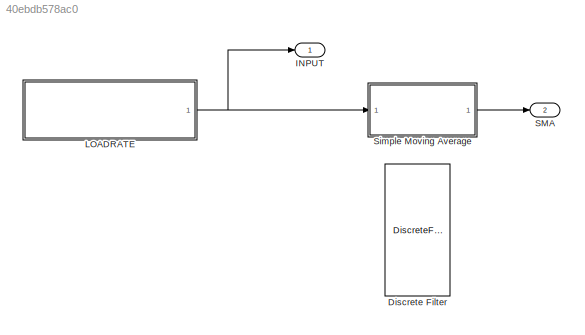
MODEL slx_40ebdb578ac0
KIND model
CONFIG AbsTol = auto
CONFIG EnableMultiTasking = off
CONFIG FixedStep = 1/360
CONFIG MaxStep = auto
CONFIG MinStep = auto
CONFIG RelTol = 1e-3
CONFIG SampleTimeConstraint = Unconstrained
CONFIG SolverName = FixedStepAuto
CONFIG StartTime = 0.0
CONFIG StopTime = 500
BLOCK [DiscreteFilter] Discrete Filter
  InputPortMap = u0
  Ports = [1, 1]
BLOCK [Outport] INPUT
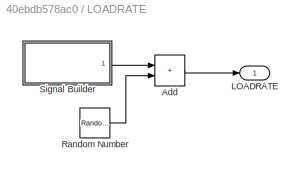
BLOCK [SubSystem] LOADRATE
  Ports = [0, 1]
  RequestExecContextInheritance = off
BLOCK [Sum] LOADRATE/Add
  IconShape = rectangular
  Ports = [2, 1]
BLOCK [Outport] LOADRATE/LOADRATE
BLOCK [RandomNumber] LOADRATE/Random Number
  Mean = 5
  SampleTime = 1/360
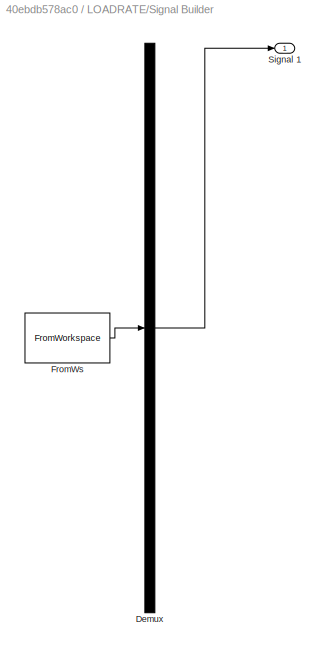
BLOCK [SubSystem] LOADRATE/Signal Builder
  ClipboardFcn = sigbuilder_block('clipboard');
  CloseFcn = sigbuilder_block('close');
  ContinueFcn = sigbuilder_block('continue');
  CopyFcn = sigbuilder_block('copy');
  DeleteFcn = sigbuilder_block('delete');
  LoadFcn = sigbuilder_block('load');
  MaskHideContents = on
  ModelCloseFcn = sigbuilder_block('modelClose');
  NameChangeFcn = sigbuilder_block('namechange');
  OpenFcn = sigbuilder_block('open',[6 36 1428 675.75 ]);
  PauseFcn = sigbuilder_block('pause');
  Ports = [0, 1]
  PreSaveFcn = sigbuilder_block('preSave');
  RequestExecContextInheritance = off
  StartFcn = sigbuilder_block('start');
  StopFcn = sigbuilder_block('stop');
  Tag = STV Subsys
BLOCK [Demux] LOADRATE/Signal Builder/Demux
  DisplayOption = none
  Outputs = 1
  Ports = [1, 1]
  Tag = STV Demux
BLOCK [FromWorkspace] LOADRATE/Signal Builder/FromWs
  Tag = STV FromWs
  VariableName = tuvar
BLOCK [Outport] LOADRATE/Signal Builder/Signal 1
  Tag = STV Outport
BLOCK [Outport] SMA
  Port = 2
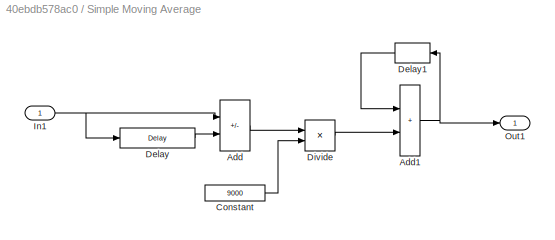
BLOCK [SubSystem] Simple Moving Average
  Ports = [1, 1]
  RequestExecContextInheritance = off
BLOCK [Sum] Simple Moving Average/Add
  IconShape = rectangular
  Inputs = +-
  Ports = [2, 1]
BLOCK [Sum] Simple Moving Average/Add1
  IconShape = rectangular
  Ports = [2, 1]
BLOCK [Constant] Simple Moving Average/Constant
  Value = 9000
BLOCK [Delay] Simple Moving Average/Delay
  DelayLength = 9000
  InitialCondition = 60
  InputPortMap = u0
  Ports = [1, 1]
BLOCK [Delay] Simple Moving Average/Delay1
  DelayLength = 1
  InitialCondition = 60
  InputPortMap = u0
  Ports = [1, 1]
BLOCK [Product] Simple Moving Average/Divide
  Inputs = */
  Ports = [2, 1]
BLOCK [Inport] Simple Moving Average/In1
BLOCK [Outport] Simple Moving Average/Out1
LINE LOADRATE/Add:1 -> LOADRATE/LOADRATE:1
LINE LOADRATE/Random Number:1 -> LOADRATE/Add:2
LINE LOADRATE/Signal Builder:1 -> LOADRATE/Add:1
NET LOADRATE:1 -> INPUT:1, Simple Moving Average:1
NET Simple Moving Average/Add1:1 -> Simple Moving Average/Delay1:1, Simple Moving Average/Out1:1
LINE Simple Moving Average/Add:1 -> Simple Moving Average/Divide:1
LINE Simple Moving Average/Constant:1 -> Simple Moving Average/Divide:2
LINE Simple Moving Average/Delay1:1 -> Simple Moving Average/Add1:1
LINE Simple Moving Average/Delay:1 -> Simple Moving Average/Add:2
LINE Simple Moving Average/Divide:1 -> Simple Moving Average/Add1:2
NET Simple Moving Average/In1:1 -> Simple Moving Average/Add:1, Simple Moving Average/Delay:1
LINE Simple Moving Average:1 -> SMA:1
note: NET lines group one-source signal fan-out (src -> all destinations, sorted); 1:1 wires keep LINE
